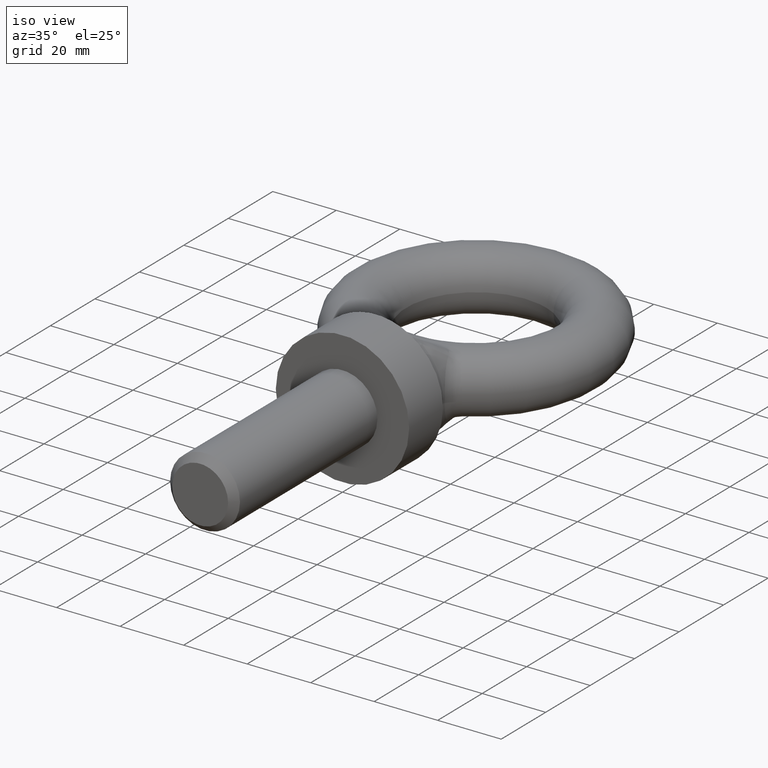
[diagram: clean part render]
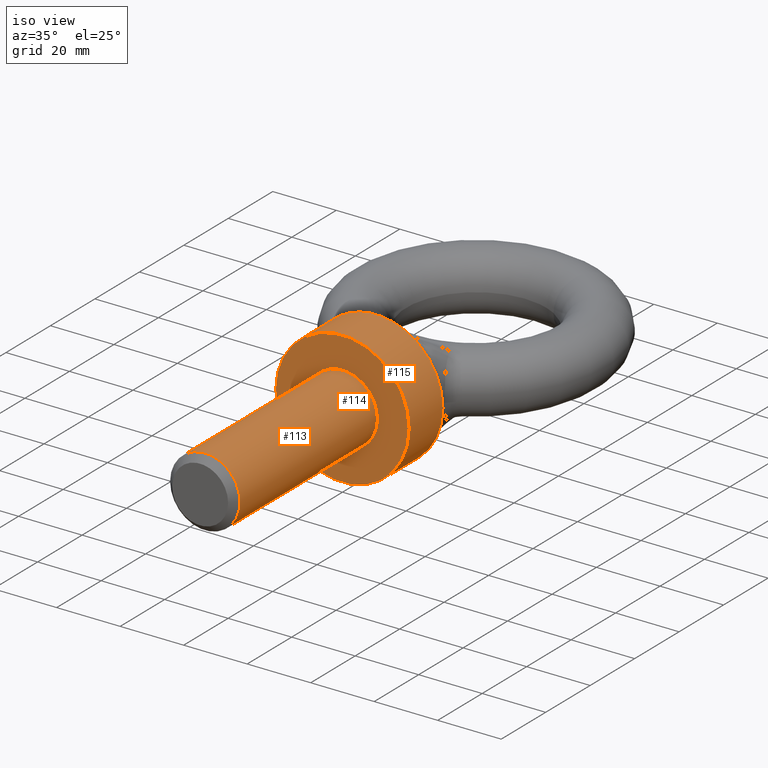
[diagram: same view with one multi-face feature highlighted, each face labeled with its STEP entity id]
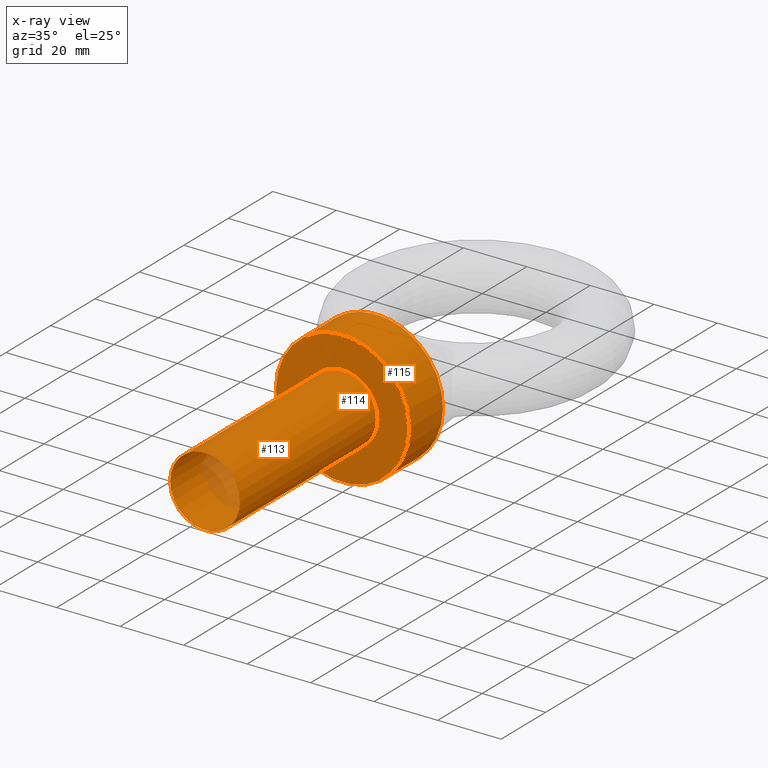
[diagram: x-ray of the same camera — body ghosted, the whole feature saturated]
A machine part, iso view. The highlighted faces form ONE feature: a stepped (counterbored) hole: 2 coaxial cylindrical walls of radii 11 -> 21 mm joined by 1 annular planar shoulder face(s). The faces share edges in the B-rep.
The next image is the same camera in x-ray: the body ghosted and the whole hole feature saturated, so the bore chain is visible through the body.
Their STEP definitions:
[1] entity #115 (Cylinder):
#78=FACE_BOUND('',#177,.T.);
#79=FACE_BOUND('',#178,.T.);
#115=ADVANCED_FACE('',(#78,#79),#137,.T.);
#137=CYLINDRICAL_SURFACE('',#504,21.);
#177=EDGE_LOOP('',(#287,#288,#289,#290,#291,#292,#293,#294));
#178=EDGE_LOOP('',(#295));
#225=CIRCLE('',#494,21.);
#226=CIRCLE('',#496,21.);
#227=CIRCLE('',#497,21.);
#228=CIRCLE('',#498,21.);
#229=CIRCLE('',#499,21.);
#230=CIRCLE('',#500,21.);
#231=CIRCLE('',#501,21.);
#232=CIRCLE('',#502,21.);
#233=CIRCLE('',#503,21.);
#287=ORIENTED_EDGE('',*,*,#434,.T.);
#288=ORIENTED_EDGE('',*,*,#435,.T.);
#289=ORIENTED_EDGE('',*,*,#436,.F.);
#290=ORIENTED_EDGE('',*,*,#437,.F.);
#291=ORIENTED_EDGE('',*,*,#438,.F.);
#292=ORIENTED_EDGE('',*,*,#439,.F.);
#293=ORIENTED_EDGE('',*,*,#440,.T.);
#294=ORIENTED_EDGE('',*,*,#441,.T.);
#295=ORIENTED_EDGE('',*,*,#433,.T.);
#389=VERTEX_POINT('',#865);
#390=VERTEX_POINT('',#868);
#391=VERTEX_POINT('',#869);
#392=VERTEX_POINT('',#871);
#393=VERTEX_POINT('',#873);
#394=VERTEX_POINT('',#875);
#395=VERTEX_POINT('',#877);
#396=VERTEX_POINT('',#879);
#397=VERTEX_POINT('',#881);
#433=EDGE_CURVE('',#389,#389,#225,.T.);
#434=EDGE_CURVE('',#390,#391,#226,.T.);
#435=EDGE_CURVE('',#391,#392,#227,.T.);
#436=EDGE_CURVE('',#393,#392,#228,.T.);
#437=EDGE_CURVE('',#394,#393,#229,.T.);
#438=EDGE_CURVE('',#395,#394,#230,.T.);
#439=EDGE_CURVE('',#396,#395,#231,.T.);
#440=EDGE_CURVE('',#396,#397,#232,.T.);
#441=EDGE_CURVE('',#397,#390,#233,.T.);
#494=AXIS2_PLACEMENT_3D('',#864,#565,#566);
#496=AXIS2_PLACEMENT_3D('',#867,#569,#570);
#497=AXIS2_PLACEMENT_3D('',#870,#571,#572);
#498=AXIS2_PLACEMENT_3D('',#872,#573,#574);
#499=AXIS2_PLACEMENT_3D('',#874,#575,#576);
#500=AXIS2_PLACEMENT_3D('',#876,#577,#578);
#501=AXIS2_PLACEMENT_3D('',#878,#579,#580);
#502=AXIS2_PLACEMENT_3D('',#880,#581,#582);
#503=AXIS2_PLACEMENT_3D('',#882,#583,#584);
#504=AXIS2_PLACEMENT_3D('',#883,#585,#586);
#565=DIRECTION('',(-2.96883306868402E-18,1.,0.));
#566=DIRECTION('',(-1.,-2.96883306868402E-18,0.));
#569=DIRECTION('',(2.96883306868402E-18,-1.,0.));
#570=DIRECTION('',(-1.,0.,0.));
#571=DIRECTION('',(2.96883306868402E-18,-1.,0.));
#572=DIRECTION('',(-1.,0.,0.));
#573=DIRECTION('',(-2.96883306868402E-18,1.,0.));
#574=DIRECTION('',(-1.,0.,0.));
#575=DIRECTION('',(-2.96883306868402E-18,1.,0.));
#576=DIRECTION('',(-1.,0.,0.));
#577=DIRECTION('',(-2.96883306868402E-18,1.,0.));
#578=DIRECTION('',(-1.,0.,0.));
#579=DIRECTION('',(-2.96883306868402E-18,1.,0.));
#580=DIRECTION('',(-1.,0.,0.));
#581=DIRECTION('',(2.96883306868402E-18,-1.,0.));
#582=DIRECTION('',(-1.,0.,0.));
#583=DIRECTION('',(2.96883306868402E-18,-1.,0.));
#584=DIRECTION('',(-1.,0.,0.));
#585=DIRECTION('',(-2.96883306868402E-18,1.,0.));
#586=DIRECTION('',(-1.,0.,0.));
#864=CARTESIAN_POINT('',(8.46117424574945E-17,0.,0.));
#865=CARTESIAN_POINT('',(-21.,-6.23454944423644E-17,0.));
#867=CARTESIAN_POINT('',(3.94854798134974E-17,15.2,0.));
#868=CARTESIAN_POINT('',(-5.12451300751372,15.2,20.3651507835278));
#869=CARTESIAN_POINT('',(-13.2840832123032,15.2,16.2644745752393));
#870=CARTESIAN_POINT('',(3.94854798134974E-17,15.2,0.));
#871=CARTESIAN_POINT('',(-13.2840832123032,15.2,-16.2644745752393));
#872=CARTESIAN_POINT('',(3.94854798134974E-17,15.2,0.));
#873=CARTESIAN_POINT('',(-5.12451300750822,15.2,-20.3651507835292));
#874=CARTESIAN_POINT('',(3.94854798134974E-17,15.2,0.));
#875=CARTESIAN_POINT('',(5.12451300751372,15.2,-20.3651507835278));
#876=CARTESIAN_POINT('',(3.94854798134974E-17,15.2,0.));
#877=CARTESIAN_POINT('',(13.2840832123032,15.2,-16.2644745752393));
#878=CARTESIAN_POINT('',(3.94854798134974E-17,15.2,0.));
#879=CARTESIAN_POINT('',(13.2840832123032,15.2,16.2644745752393));
#880=CARTESIAN_POINT('',(3.94854798134974E-17,15.2,0.));
#881=CARTESIAN_POINT('',(5.12451300750822,15.2,20.3651507835292));
#882=CARTESIAN_POINT('',(3.94854798134974E-17,15.2,0.));
#883=CARTESIAN_POINT('',(2.74617058853272E-16,-64.,0.));
[2] entity #113 (Cylinder):
#74=FACE_BOUND('',#173,.T.);
#75=FACE_BOUND('',#174,.T.);
#113=ADVANCED_FACE('',(#74,#75),#136,.T.);
#136=CYLINDRICAL_SURFACE('',#493,11.);
#173=EDGE_LOOP('',(#283));
#174=EDGE_LOOP('',(#284));
#223=CIRCLE('',#491,11.);
#224=CIRCLE('',#492,11.);
#283=ORIENTED_EDGE('',*,*,#431,.T.);
#284=ORIENTED_EDGE('',*,*,#432,.F.);
#387=VERTEX_POINT('',#860);
#388=VERTEX_POINT('',#862);
#431=EDGE_CURVE('',#387,#387,#223,.T.);
#432=EDGE_CURVE('',#388,#388,#224,.T.);
#491=AXIS2_PLACEMENT_3D('',#859,#559,#560);
#492=AXIS2_PLACEMENT_3D('',#861,#561,#562);
#493=AXIS2_PLACEMENT_3D('',#863,#563,#564);
#559=DIRECTION('',(-2.96883306868403E-18,1.,0.));
#560=DIRECTION('',(-1.,0.,0.));
#561=DIRECTION('',(-2.96883306868402E-18,1.,0.));
#562=DIRECTION('',(-1.,-2.96883306868402E-18,0.));
#563=DIRECTION('',(-2.96883306868402E-18,1.,0.));
#564=DIRECTION('',(-1.,0.,0.));
#859=CARTESIAN_POINT('',(2.68085626102167E-16,-61.8,0.));
#860=CARTESIAN_POINT('',(-11.,-61.8,0.));
#861=CARTESIAN_POINT('',(8.46117424574945E-17,0.,0.));
#862=CARTESIAN_POINT('',(-11.,-3.26571637555242E-17,0.));
#863=CARTESIAN_POINT('',(2.74617058853272E-16,-64.,0.));
[3] entity #114 (Plane):
#76=FACE_BOUND('',#175,.T.);
#77=FACE_BOUND('',#176,.T.);
#103=PLANE('',#495);
#114=ADVANCED_FACE('',(#76,#77),#103,.F.);
#175=EDGE_LOOP('',(#285));
#176=EDGE_LOOP('',(#286));
#224=CIRCLE('',#492,11.);
#225=CIRCLE('',#494,21.);
#285=ORIENTED_EDGE('',*,*,#433,.F.);
#286=ORIENTED_EDGE('',*,*,#432,.T.);
#388=VERTEX_POINT('',#862);
#389=VERTEX_POINT('',#865);
#432=EDGE_CURVE('',#388,#388,#224,.T.);
#433=EDGE_CURVE('',#389,#389,#225,.T.);
#492=AXIS2_PLACEMENT_3D('',#861,#561,#562);
#494=AXIS2_PLACEMENT_3D('',#864,#565,#566);
#495=AXIS2_PLACEMENT_3D('',#866,#567,#568);
#561=DIRECTION('',(-2.96883306868402E-18,1.,0.));
#562=DIRECTION('',(-1.,-2.96883306868402E-18,0.));
#565=DIRECTION('',(-2.96883306868402E-18,1.,0.));
#566=DIRECTION('',(-1.,-2.96883306868402E-18,0.));
#567=DIRECTION('',(-2.96883306868402E-18,1.,0.));
#568=DIRECTION('',(-1.,-2.96883306868402E-18,0.));
#861=CARTESIAN_POINT('',(8.46117424574945E-17,0.,0.));
#862=CARTESIAN_POINT('',(-11.,-3.26571637555242E-17,0.));
#864=CARTESIAN_POINT('',(8.46117424574945E-17,0.,0.));
#865=CARTESIAN_POINT('',(-21.,-6.23454944423644E-17,0.));
#866=CARTESIAN_POINT('',(11.,8.42408594059727E-16,0.));